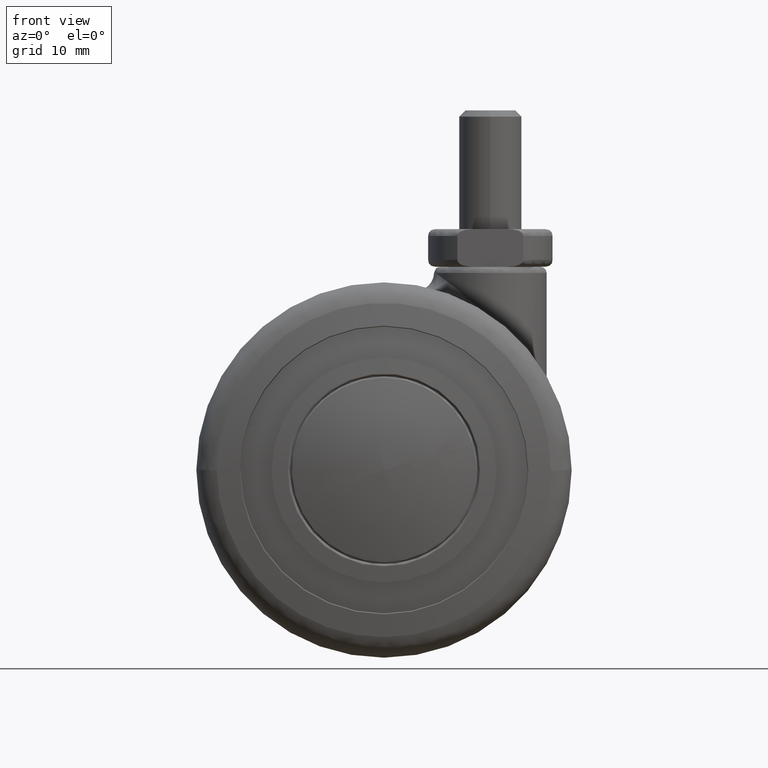
[diagram: clean part render]
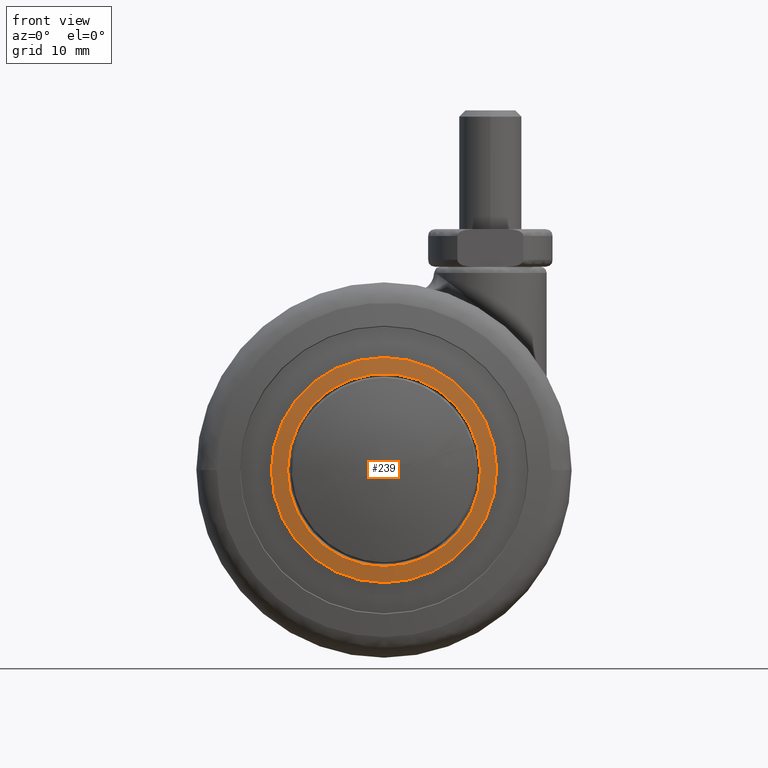
[diagram: same view with one face highlighted and labeled with its STEP entity id]
A machine part, front view. The second image highlights one B-rep face of the part: STEP entity #239.
In plain terms, the highlighted spherical surface has radius 150 mm.
Its self-contained STEP definition (entity closure, byte-faithful):
#239=ADVANCED_FACE('',(#1131,#1132),#1130,.T.);
#1130=SPHERICAL_SURFACE('',#3577,1.50000000000E+02);
#1131=FACE_OUTER_BOUND('',#3578,.T.);
#1132=FACE_BOUND('',#3579,.T.);
#3574=CARTESIAN_POINT('',(0.00000000000E+00,0.00000000000E+00,-1.35210000000E+02));
#3575=DIRECTION('',(-1.00000000000E+00,0.00000000000E+00,0.00000000000E+00));
#3576=DIRECTION('',(-0.00000000000E+00,-1.20000000000E-01,9.92773891679E-01));
#3577=AXIS2_PLACEMENT_3D('',#3574,#3575,#3576);
#3578=EDGE_LOOP('',(#4900,#4901));
#3579=EDGE_LOOP('',(#4902,#4903,#4904));
#4900=ORIENTED_EDGE('',*,*,#5444,.T.);
#4901=ORIENTED_EDGE('',*,*,#5445,.T.);
#4902=ORIENTED_EDGE('',*,*,#5446,.T.);
#4903=ORIENTED_EDGE('',*,*,#5447,.T.);
#4904=ORIENTED_EDGE('',*,*,#5448,.T.);
#5444=EDGE_CURVE('',#7079,#7080,#7081,.T.);
#5445=EDGE_CURVE('',#7080,#7079,#7087,.T.);
#5446=EDGE_CURVE('',#7093,#7094,#7095,.T.);
#5447=EDGE_CURVE('',#7094,#7101,#7102,.T.);
#5448=EDGE_CURVE('',#7101,#7093,#7108,.T.);
#7079=VERTEX_POINT('',#9276);
#7080=VERTEX_POINT('',#9277);
#7081=CIRCLE('',#9281,1.80000000000E+01);
#7087=CIRCLE('',#9285,1.80000000000E+01);
#7093=VERTEX_POINT('',#9286);
#7094=VERTEX_POINT('',#9287);
#7095=CIRCLE('',#9291,1.54308617234E+01);
#7101=VERTEX_POINT('',#9292);
#7102=CIRCLE('',#9296,1.54308617234E+01);
#7108=CIRCLE('',#9300,1.54308617234E+01);
#9276=CARTESIAN_POINT('',(1.80000000000E+01,-4.40865567535E-15,1.37060837519E+01));
#9277=CARTESIAN_POINT('',(-1.80000000000E+01,1.18423789293E-15,1.37060837519E+01));
#9278=CARTESIAN_POINT('',(0.00000000000E+00,0.00000000000E+00,1.37060837519E+01));
#9279=DIRECTION('',(0.00000000000E+00,0.00000000000E+00,1.00000000000E+00));
#9280=DIRECTION('',(1.00000000000E+00,-1.22464679915E-16,-0.00000000000E+00));
#9281=AXIS2_PLACEMENT_3D('',#9278,#9279,#9280);
#9282=CARTESIAN_POINT('',(0.00000000000E+00,0.00000000000E+00,1.37060837519E+01));
#9283=DIRECTION('',(0.00000000000E+00,0.00000000000E+00,1.00000000000E+00));
#9284=DIRECTION('',(1.00000000000E+00,-1.22464679915E-16,-0.00000000000E+00));
#9285=AXIS2_PLACEMENT_3D('',#9282,#9283,#9284);
#9286=CARTESIAN_POINT('',(1.88967313115E-15,-1.54308617234E+01,1.39941839443E+01));
#9287=CARTESIAN_POINT('',(-1.54308616403E+01,1.60142647471E-03,1.39941839443E+01));
#9288=CARTESIAN_POINT('',(0.00000000000E+00,0.00000000000E+00,1.39941839443E+01));
#9289=DIRECTION('',(0.00000000000E+00,0.00000000000E+00,-1.00000000000E+00));
#9290=DIRECTION('',(-0.00000000000E+00,-1.00000000000E+00,-0.00000000000E+00));
#9291=AXIS2_PLACEMENT_3D('',#9288,#9289,#9290);
#9292=CARTESIAN_POINT('',(1.54308617234E+01,-5.40735557049E-10,1.39941839443E+01));
#9293=CARTESIAN_POINT('',(0.00000000000E+00,0.00000000000E+00,1.39941839443E+01));
#9294=DIRECTION('',(0.00000000000E+00,0.00000000000E+00,-1.00000000000E+00));
#9295=DIRECTION('',(-0.00000000000E+00,-1.00000000000E+00,-0.00000000000E+00));
#9296=AXIS2_PLACEMENT_3D('',#9293,#9294,#9295);
#9297=CARTESIAN_POINT('',(0.00000000000E+00,0.00000000000E+00,1.39941839443E+01));
#9298=DIRECTION('',(0.00000000000E+00,0.00000000000E+00,-1.00000000000E+00));
#9299=DIRECTION('',(-0.00000000000E+00,-1.00000000000E+00,-0.00000000000E+00));
#9300=AXIS2_PLACEMENT_3D('',#9297,#9298,#9299);